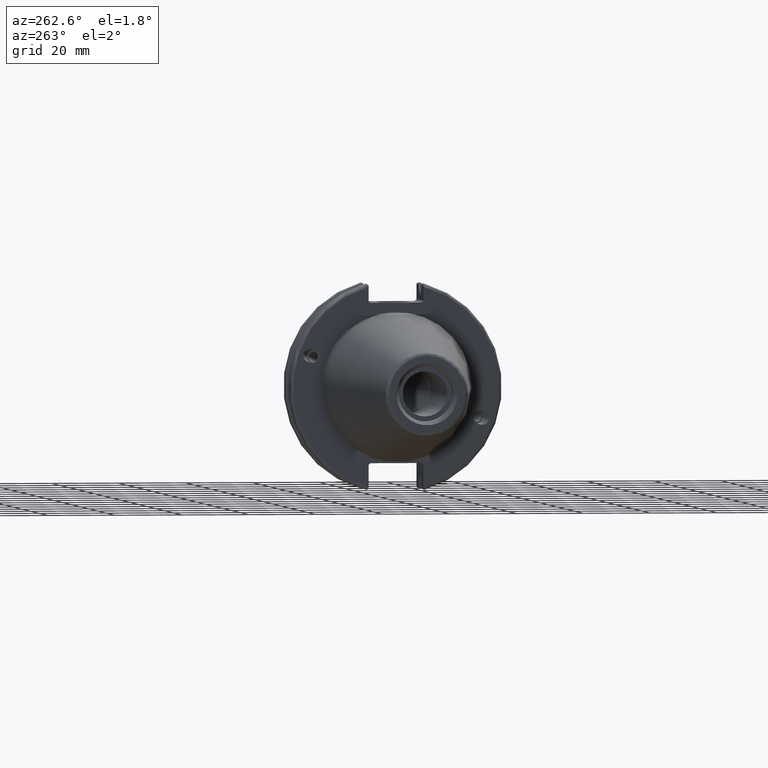
[diagram: clean part render]
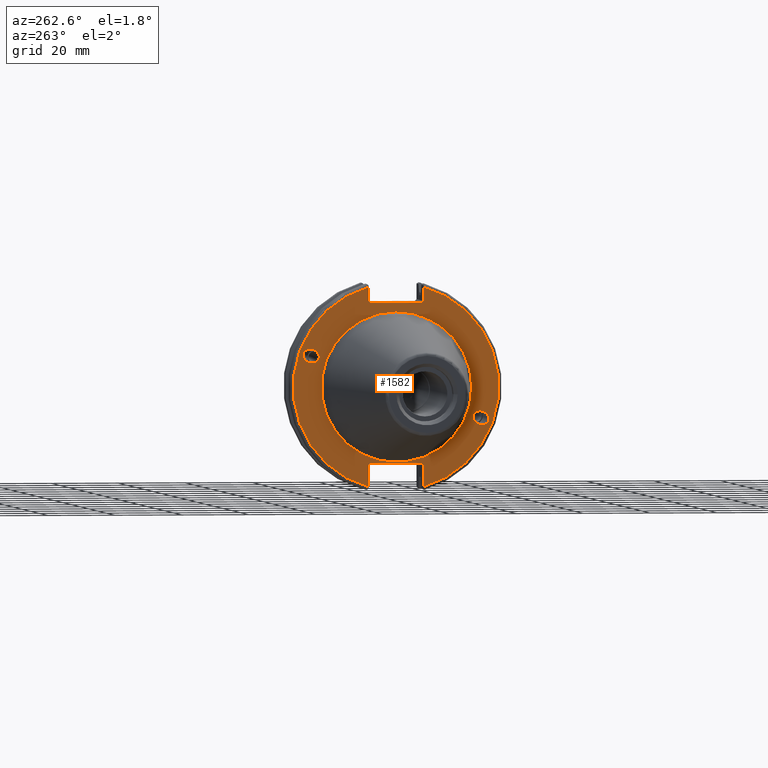
[diagram: same view with one face highlighted and labeled with its STEP entity id]
A machine part, auxiliary view. The second image highlights one B-rep face of the part: STEP entity #1582.
In plain terms, the highlighted planar face has unit normal (-1, 0, 0).
Its self-contained STEP definition (entity closure, byte-faithful):
#73=FACE_BOUND('',#325,.T.);
#74=FACE_BOUND('',#326,.T.);
#75=FACE_BOUND('',#327,.T.);
#91=PLANE('',#1766);
#134=ELLIPSE('',#1713,2.44154917752292,2.00000000000001);
#143=ELLIPSE('',#1756,2.44154917752292,2.00000000000001);
#221=FACE_OUTER_BOUND('',#324,.T.);
#324=EDGE_LOOP('',(#1282,#1283,#1284,#1285,#1286,#1287,#1288,#1289,#1290,
#1291,#1292,#1293));
#325=EDGE_LOOP('',(#1294));
#326=EDGE_LOOP('',(#1295));
#327=EDGE_LOOP('',(#1296));
#426=LINE('',#2800,#524);
#427=LINE('',#2802,#525);
#428=LINE('',#2804,#526);
#429=LINE('',#2806,#527);
#430=LINE('',#2808,#528);
#431=LINE('',#2812,#529);
#432=LINE('',#2814,#530);
#433=LINE('',#2816,#531);
#434=LINE('',#2818,#532);
#435=LINE('',#2819,#533);
#524=VECTOR('',#2125,10.);
#525=VECTOR('',#2126,10.);
#526=VECTOR('',#2127,10.);
#527=VECTOR('',#2128,10.);
#528=VECTOR('',#2129,10.);
#529=VECTOR('',#2132,10.);
#530=VECTOR('',#2133,10.);
#531=VECTOR('',#2134,10.);
#532=VECTOR('',#2135,10.);
#533=VECTOR('',#2136,10.);
#619=CIRCLE('',#1764,22.3);
#621=CIRCLE('',#1767,30.75);
#622=CIRCLE('',#1768,30.75);
#705=VERTEX_POINT('',#2593);
#745=VERTEX_POINT('',#2776);
#750=VERTEX_POINT('',#2791);
#751=VERTEX_POINT('',#2796);
#752=VERTEX_POINT('',#2797);
#753=VERTEX_POINT('',#2799);
#754=VERTEX_POINT('',#2801);
#755=VERTEX_POINT('',#2803);
#756=VERTEX_POINT('',#2805);
#757=VERTEX_POINT('',#2807);
#758=VERTEX_POINT('',#2809);
#759=VERTEX_POINT('',#2811);
#760=VERTEX_POINT('',#2813);
#761=VERTEX_POINT('',#2815);
#762=VERTEX_POINT('',#2817);
#882=EDGE_CURVE('',#705,#705,#134,.T.);
#938=EDGE_CURVE('',#745,#745,#143,.T.);
#945=EDGE_CURVE('',#750,#750,#619,.T.);
#947=EDGE_CURVE('',#751,#752,#621,.T.);
#948=EDGE_CURVE('',#751,#753,#426,.T.);
#949=EDGE_CURVE('',#754,#753,#427,.T.);
#950=EDGE_CURVE('',#754,#755,#428,.T.);
#951=EDGE_CURVE('',#756,#755,#429,.T.);
#952=EDGE_CURVE('',#756,#757,#430,.T.);
#953=EDGE_CURVE('',#758,#757,#622,.T.);
#954=EDGE_CURVE('',#758,#759,#431,.T.);
#955=EDGE_CURVE('',#760,#759,#432,.T.);
#956=EDGE_CURVE('',#760,#761,#433,.T.);
#957=EDGE_CURVE('',#762,#761,#434,.T.);
#958=EDGE_CURVE('',#762,#752,#435,.T.);
#1282=ORIENTED_EDGE('',*,*,#947,.F.);
#1283=ORIENTED_EDGE('',*,*,#948,.T.);
#1284=ORIENTED_EDGE('',*,*,#949,.F.);
#1285=ORIENTED_EDGE('',*,*,#950,.T.);
#1286=ORIENTED_EDGE('',*,*,#951,.F.);
#1287=ORIENTED_EDGE('',*,*,#952,.T.);
#1288=ORIENTED_EDGE('',*,*,#953,.F.);
#1289=ORIENTED_EDGE('',*,*,#954,.T.);
#1290=ORIENTED_EDGE('',*,*,#955,.F.);
#1291=ORIENTED_EDGE('',*,*,#956,.T.);
#1292=ORIENTED_EDGE('',*,*,#957,.F.);
#1293=ORIENTED_EDGE('',*,*,#958,.T.);
#1294=ORIENTED_EDGE('',*,*,#882,.T.);
#1295=ORIENTED_EDGE('',*,*,#938,.T.);
#1296=ORIENTED_EDGE('',*,*,#945,.F.);
#1582=ADVANCED_FACE('',(#221,#73,#74,#75),#91,.T.);
#1713=AXIS2_PLACEMENT_3D('',#2595,#1996,#1997);
#1756=AXIS2_PLACEMENT_3D('',#2778,#2099,#2100);
#1764=AXIS2_PLACEMENT_3D('',#2793,#2117,#2118);
#1766=AXIS2_PLACEMENT_3D('',#2795,#2121,#2122);
#1767=AXIS2_PLACEMENT_3D('',#2798,#2123,#2124);
#1768=AXIS2_PLACEMENT_3D('',#2810,#2130,#2131);
#1996=DIRECTION('center_axis',(1.,0.,0.));
#1997=DIRECTION('ref_axis',(5.68400912649E-17,-0.939692620785909,-0.342020143325667));
#2099=DIRECTION('center_axis',(1.,0.,0.));
#2100=DIRECTION('ref_axis',(5.68400912649E-17,0.939692620785909,0.342020143325667));
#2117=DIRECTION('center_axis',(-1.,0.,0.));
#2118=DIRECTION('ref_axis',(0.,-1.,1.83697019872103E-16));
#2121=DIRECTION('center_axis',(-1.,0.,0.));
#2122=DIRECTION('ref_axis',(0.,0.,1.));
#2123=DIRECTION('center_axis',(1.,0.,0.));
#2124=DIRECTION('ref_axis',(0.,-1.,1.60812264967664E-16));
#2125=DIRECTION('',(0.,0.,-1.));
#2126=DIRECTION('',(0.,-0.70710678118655,0.707106781186545));
#2127=DIRECTION('',(0.,1.,0.));
#2128=DIRECTION('',(0.,-0.707106781186549,-0.707106781186546));
#2129=DIRECTION('',(0.,0.,1.));
#2130=DIRECTION('center_axis',(1.,0.,0.));
#2131=DIRECTION('ref_axis',(0.,1.,1.60812264967664E-16));
#2132=DIRECTION('',(0.,0.,1.));
#2133=DIRECTION('',(0.,0.707106781186549,-0.707106781186546));
#2134=DIRECTION('',(0.,-1.,0.));
#2135=DIRECTION('',(0.,0.707106781186549,0.707106781186546));
#2136=DIRECTION('',(0.,0.,-1.));
#2593=CARTESIAN_POINT('',(3.175,-23.0773950158153,-8.39948487016));
#2595=CARTESIAN_POINT('Origin',(3.175,-25.3717007612195,-9.23454386979305));
#2776=CARTESIAN_POINT('',(3.175,23.0773950158153,8.39948487016));
#2778=CARTESIAN_POINT('Origin',(3.175,25.3717007612195,9.23454386979306));
#2791=CARTESIAN_POINT('',(3.175,-2.7309623620986E-15,22.3));
#2793=CARTESIAN_POINT('Origin',(3.175,0.,0.));
#2795=CARTESIAN_POINT('Origin',(3.175,31.75,0.));
#2796=CARTESIAN_POINT('',(3.175,-8.18999999999999,29.6392712461019));
#2797=CARTESIAN_POINT('',(3.175,-8.19,-29.6392712461019));
#2798=CARTESIAN_POINT('Origin',(3.175,0.,0.));
#2799=CARTESIAN_POINT('',(3.175,-8.18999999999999,25.5));
#2800=CARTESIAN_POINT('',(3.175,-8.18999999999999,12.5));
#2801=CARTESIAN_POINT('',(3.175,-7.68999999999999,25.));
#2802=CARTESIAN_POINT('',(3.175,8.29500000000007,9.01500000000004));
#2803=CARTESIAN_POINT('',(3.175,7.69,25.));
#2804=CARTESIAN_POINT('',(3.175,15.875,25.));
#2805=CARTESIAN_POINT('',(3.175,8.19,25.5));
#2806=CARTESIAN_POINT('',(3.175,7.58000000000002,24.89));
#2807=CARTESIAN_POINT('',(3.175,8.19,29.6392712461019));
#2808=CARTESIAN_POINT('',(3.175,8.19,12.5));
#2809=CARTESIAN_POINT('',(3.175,8.18999999999999,-29.6392712461019));
#2810=CARTESIAN_POINT('Origin',(3.175,0.,0.));
#2811=CARTESIAN_POINT('',(3.175,8.18999999999999,-23.1));
#2812=CARTESIAN_POINT('',(3.175,8.18999999999999,-11.3));
#2813=CARTESIAN_POINT('',(3.175,7.69,-22.6));
#2814=CARTESIAN_POINT('',(3.175,8.18000000000002,-23.09));
#2815=CARTESIAN_POINT('',(3.175,-7.69,-22.6));
#2816=CARTESIAN_POINT('',(3.175,15.875,-22.6));
#2817=CARTESIAN_POINT('',(3.175,-8.19,-23.1));
#2818=CARTESIAN_POINT('',(3.175,7.69500000000004,-7.21500000000002));
#2819=CARTESIAN_POINT('',(3.175,-8.19,-11.3));